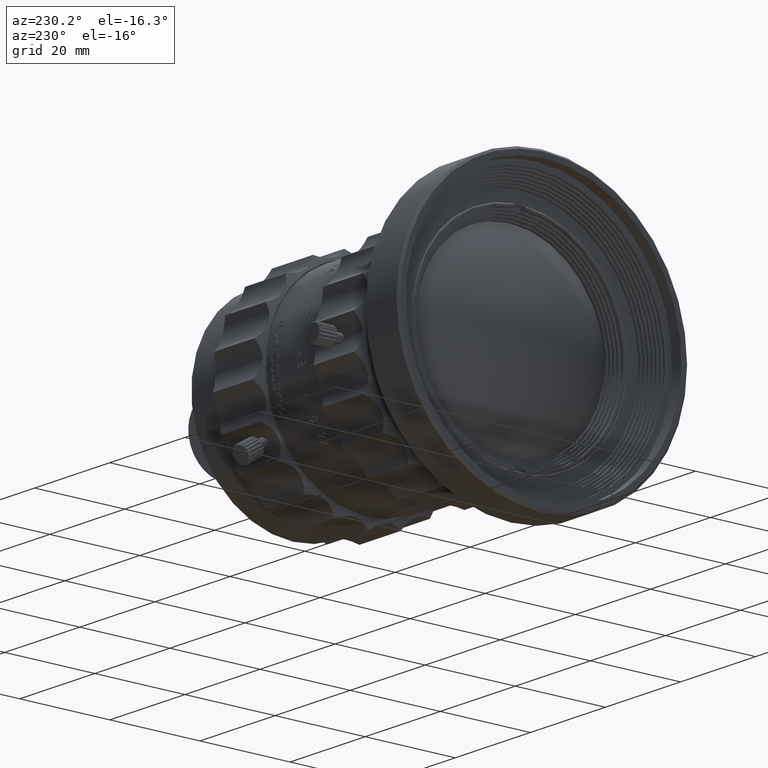
[diagram: clean part render]
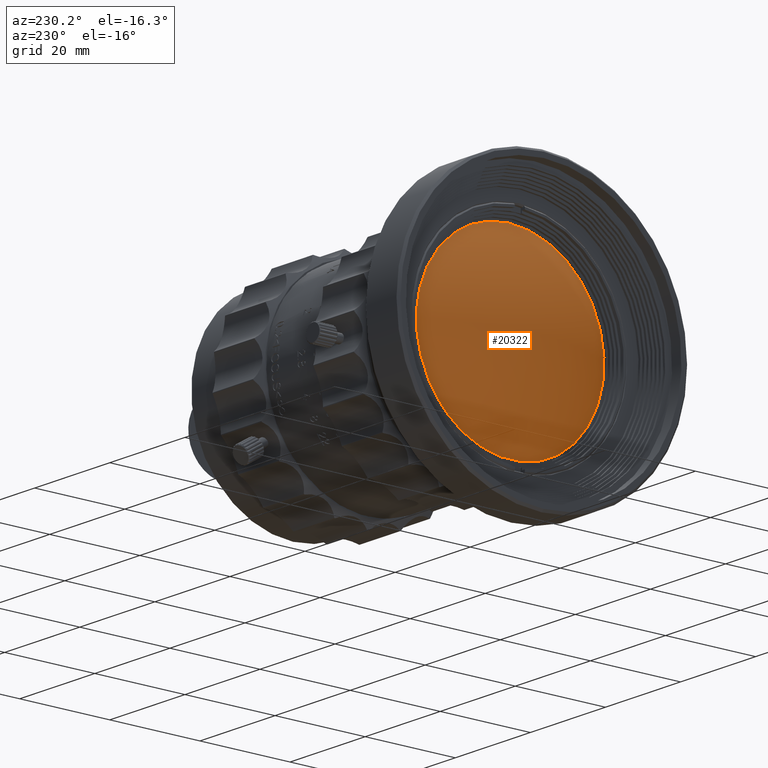
[diagram: same view with one face highlighted and labeled with its STEP entity id]
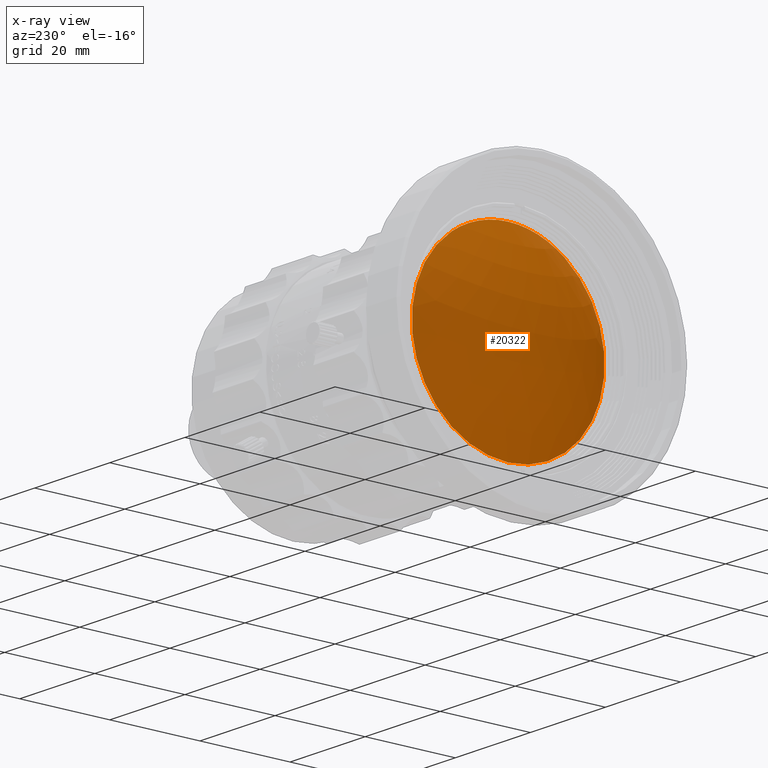
[diagram: x-ray of the same camera — body ghosted, the highlighted face saturated]
A machine part, auxiliary view. The second image highlights one B-rep face of the part: STEP entity #20322.
The next image is the same camera in x-ray: the body ghosted, the highlighted face saturated — about 0% of this face is hidden behind the body in this view.
In plain terms, the highlighted spherical surface has radius 36.3881 mm.
Its self-contained STEP definition (entity closure, byte-faithful):
#18824 = ORIENTED_EDGE ( 'NONE', *, *, #76741, .T. ) ;
#20322 = ADVANCED_FACE ( 'NONE', ( #34518 ), #53941, .T. ) ;
#20565 = DIRECTION ( 'NONE',  ( -0.8043244969268472655, 9.614050470805833367E-08, -0.5941902924513028372 ) ) ;
#29166 = CIRCLE ( 'NONE', #80505, 21.40000090003013966 ) ;
#30118 = AXIS2_PLACEMENT_3D ( 'NONE', #46372, #46793, #20565 ) ;
#34518 = FACE_OUTER_BOUND ( 'NONE', #55734, .T. ) ;
#46372 = CARTESIAN_POINT ( 'NONE',  ( -0.6752807653609355087, -7.145772927608704126E-06, -2.079699545031643574E-06 ) ) ;
#46793 = DIRECTION ( 'NONE',  ( -0.5941902924513104978, -1.301404005250520016E-07, 0.8043244969268367184 ) ) ;
#53080 = DIRECTION ( 'NONE',  ( 0.000000000000000000, -1.618008667910686841E-07, 0.9999999999999868994 ) ) ;
#53941 = SPHERICAL_SURFACE ( 'NONE', #30118, 36.38805200000042106 ) ;
#55734 = EDGE_LOOP ( 'NONE', ( #18824 ) ) ;
#56069 = CARTESIAN_POINT ( 'NONE',  ( -30.10537195556893408, -9.563008663873048235E-06, 21.39999882033046674 ) ) ;
#56897 = VERTEX_POINT ( 'NONE', #56069 ) ;
#66610 = DIRECTION ( 'NONE',  ( -1.000000000000000000, -2.856224572105147187E-18, -2.116500836622645387E-24 ) ) ;
#72966 = CARTESIAN_POINT ( 'NONE',  ( -30.10537195556893408, -6.100469968918521451E-06, -2.079699391513229739E-06 ) ) ;
#76741 = EDGE_CURVE ( 'NONE', #56897, #56897, #29166, .T. ) ;
#80505 = AXIS2_PLACEMENT_3D ( 'NONE', #72966, #66610, #53080 ) ;